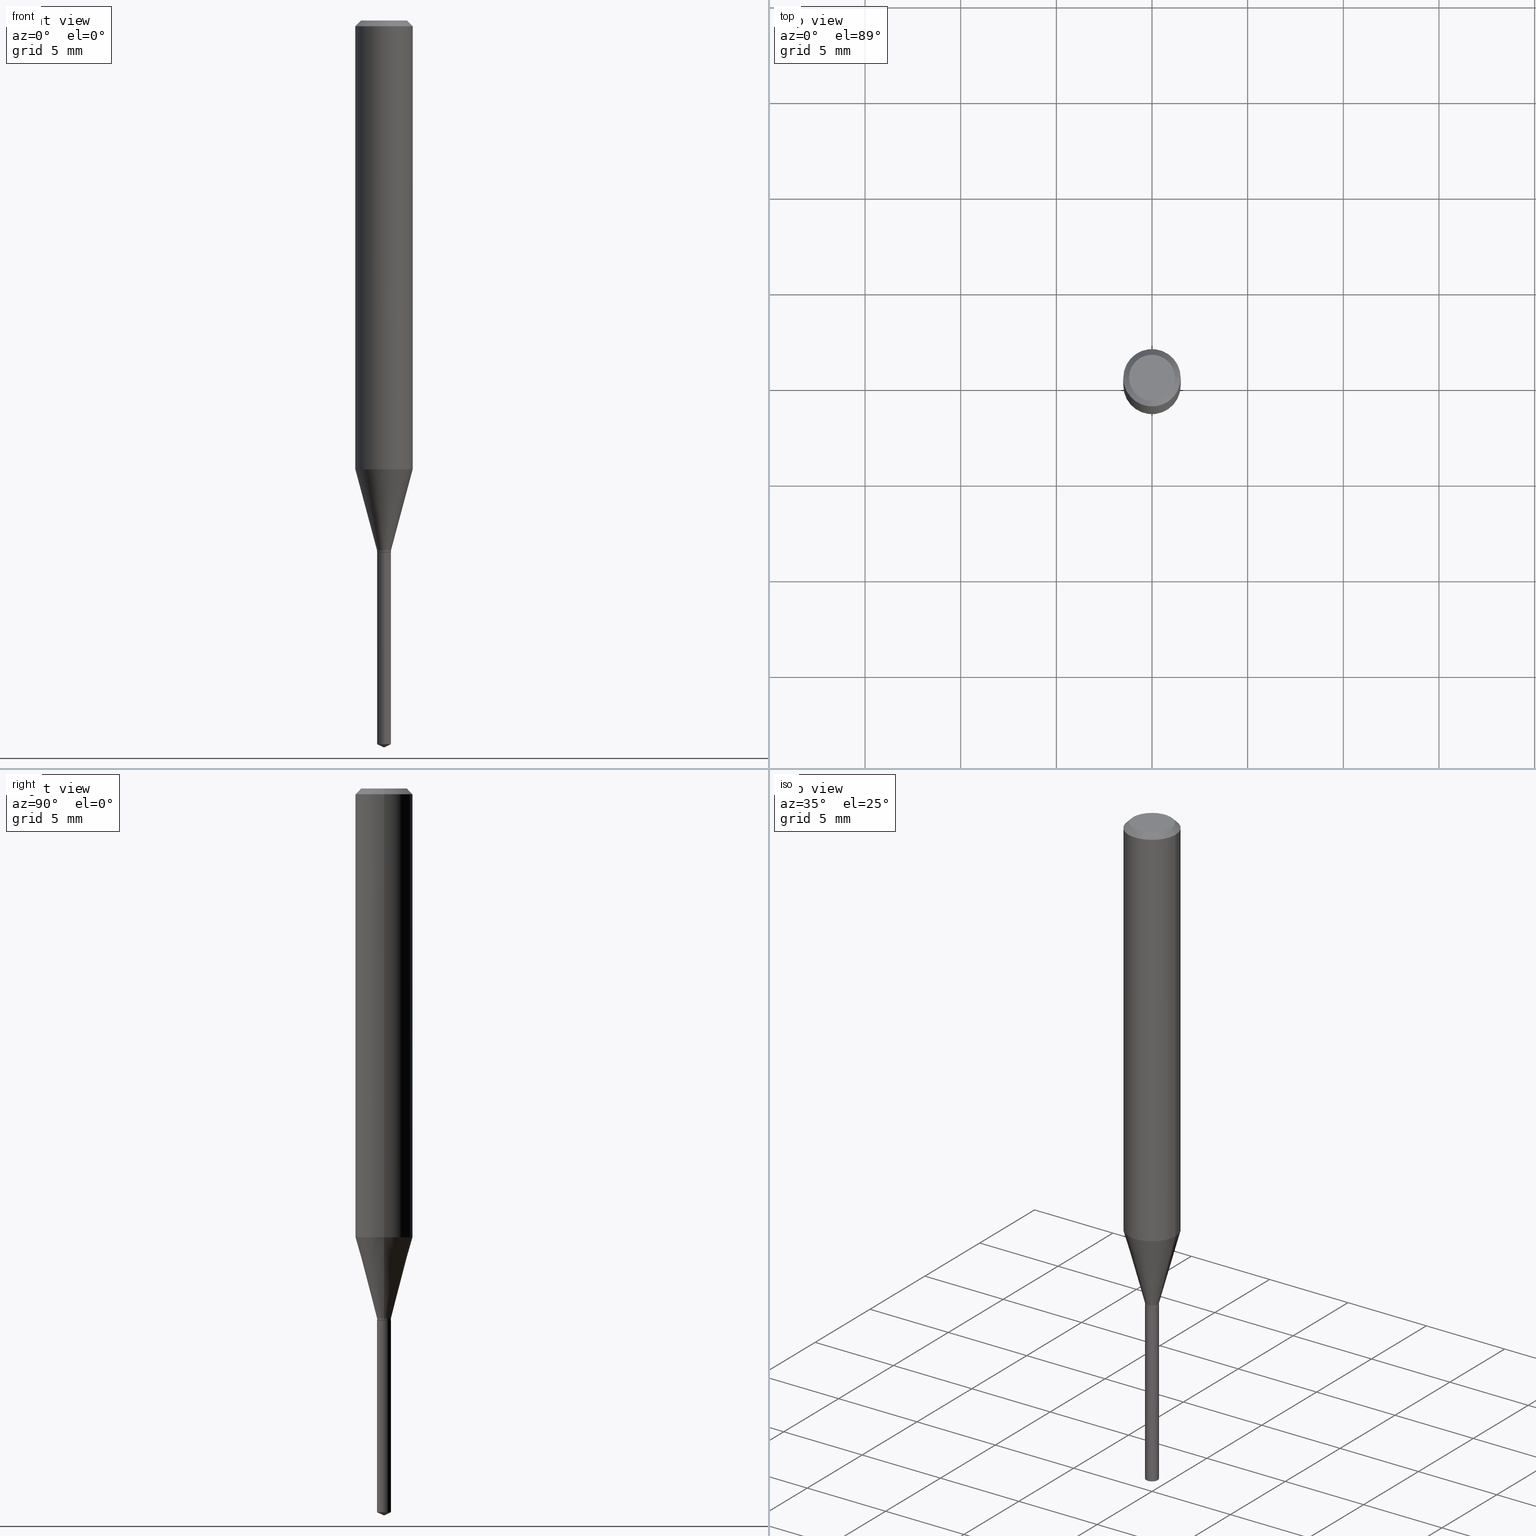
[diagram: canonical four-view strip — front | top / right | iso, engineering-drawing reading convention]
A machine part, canonical four-view strip (front | top / right | iso — engineering-drawing reading convention). The complete STEP part file that produces these views, byte-faithful:
ISO-10303-21;
HEADER;
FILE_DESCRIPTION (( 'STEP AP203' ),
    '1' );
FILE_NAME ('08297.STEP',
    '2024-04-24T14:10:12',
    ( '' ),
    ( '' ),
    'SwSTEP 2.0',
    'SolidWorks 2023',
    '' );
FILE_SCHEMA (( 'CONFIG_CONTROL_DESIGN' ));
ENDSEC;

DATA;
#1 = EDGE_CURVE ( 'NONE', #202, #313, #130, .T. ) ;
#2 = DIRECTION ( 'NONE',  ( 0.2588190451025213501, 1.565188264969621968E-15, 0.9659258262890682012 ) ) ;
#3 = VECTOR ( 'NONE', #466, 39.37007874015748143 ) ;
#4 = ADVANCED_FACE ( 'NONE', ( #254 ), #148, .T. ) ;
#5 = DIRECTION ( 'NONE',  ( 1.000000000000000000, -6.982962677686261977E-15, 0.000000000000000000 ) ) ;
#6 = EDGE_CURVE ( 'NONE', #313, #237, #451, .T. ) ;
#7 = PRODUCT ( '08297', '08297', '', ( #180 ) ) ;
#8 = AXIS2_PLACEMENT_3D ( 'NONE', #485, #381, #468 ) ;
#9 = LINE ( 'NONE', #157, #363 ) ;
#10 = DIRECTION ( 'NONE',  ( -1.000000000000000000, 6.982962677686266711E-15, 0.000000000000000000 ) ) ;
#11 = ORIENTED_EDGE ( 'NONE', *, *, #42, .F. ) ;
#12 = ADVANCED_FACE ( 'NONE', ( #369 ), #250, .T. ) ;
#13 = PERSON_AND_ORGANIZATION ( #452, #293 ) ;
#14 = ORIENTED_EDGE ( 'NONE', *, *, #173, .T. ) ;
#15 = AXIS2_PLACEMENT_3D ( 'NONE', #290, #376, #463 ) ;
#16 = AXIS2_PLACEMENT_3D ( 'NONE', #103, #365, #478 ) ;
#17 = APPROVAL_DATE_TIME ( #390, #291 ) ;
#18 = CARTESIAN_POINT ( 'NONE',  ( -1.002055144247615055E-16, -0.01435000000000520234, -1.489408485105475854 ) ) ;
#19 = ORIENTED_EDGE ( 'NONE', *, *, #120, .T. ) ;
#20 = PERSON_AND_ORGANIZATION ( #452, #293 ) ;
#21 = ORIENTED_EDGE ( 'NONE', *, *, #383, .F. ) ;
#22 = FACE_OUTER_BOUND ( 'NONE', #129, .T. ) ;
#23 = ORIENTED_EDGE ( 'NONE', *, *, #69, .F. ) ;
#24 = VERTEX_POINT ( 'NONE', #183 ) ;
#25 = EDGE_CURVE ( 'NONE', #391, #124, #413, .T. ) ;
#26 = LINE ( 'NONE', #57, #446 ) ;
#27 = ORIENTED_EDGE ( 'NONE', *, *, #415, .T. ) ;
#28 = CLOSED_SHELL ( 'NONE', ( #186, #84, #387, #222, #12, #227, #4, #342, #191, #268, #162, #448 ) ) ;
#29 = EDGE_LOOP ( 'NONE', ( #167, #349, #82, #277 ) ) ;
#30 = CARTESIAN_POINT ( 'NONE',  ( 0.01384999999999999946, -3.918140358449778015E-15, -1.094500000000000028 ) ) ;
#31 = DIRECTION ( 'NONE',  ( 1.000000000000000000, -6.982962677686268288E-15, 0.000000000000000000 ) ) ;
#32 = CARTESIAN_POINT ( 'NONE',  ( 3.641617199733199187E-29, -5.201222590288141765E-15, -1.489408485105475854 ) ) ;
#33 = DIRECTION ( 'NONE',  ( 1.000000000000000000, -6.982962677686261977E-15, 0.000000000000000000 ) ) ;
#34 = PRODUCT_DEFINITION ( 'UNKNOWN', '', #436, #89 ) ;
#35 = CARTESIAN_POINT ( 'NONE',  ( 2.676565608369631794E-29, -3.821426325363822773E-15, -1.094499999999999806 ) ) ;
#36 = CONICAL_SURFACE ( 'NONE', #155, 0.05904999999999999832, 0.7853981633974452814 ) ;
#37 = AXIS2_PLACEMENT_3D ( 'NONE', #62, #52, #444 ) ;
#38 = CARTESIAN_POINT ( 'NONE',  ( 1.019628825816011233E-16, 0.01434999999999617658, -1.094499999999999806 ) ) ;
#39 = FACE_OUTER_BOUND ( 'NONE', #288, .T. ) ;
#40 = AXIS2_PLACEMENT_3D ( 'NONE', #32, #482, #137 ) ;
#41 = DIRECTION ( 'NONE',  ( 1.000000000000000000, -6.982962677686265922E-15, 4.876176775795935793E-29 ) ) ;
#42 = EDGE_CURVE ( 'NONE', #313, #202, #272, .T. ) ;
#43 = LOCAL_TIME ( 10, 10, 12.00000000000000000, #185 ) ;
#44 = LOCAL_TIME ( 10, 10, 12.00000000000000000, #315 ) ;
#45 = CARTESIAN_POINT ( 'NONE',  ( 2.676565608369632355E-29, -3.821426325363822773E-15, -1.094500000000000028 ) ) ;
#46 = CC_DESIGN_PERSON_AND_ORGANIZATION_ASSIGNMENT ( #122, #286, ( #7 ) ) ;
#47 = DIRECTION ( 'NONE',  ( -2.445468806185136597E-29, 3.491481338843145583E-15, 1.000000000000000000 ) ) ;
#48 = APPROVAL_STATUS ( 'not_yet_approved' ) ;
#49 = VERTEX_POINT ( 'NONE', #425 ) ;
#50 = LOCAL_TIME ( 10, 10, 12.00000000000000000, #204 ) ;
#51 = PERSON_AND_ORGANIZATION_ROLE ( 'creator' ) ;
#52 = DIRECTION ( 'NONE',  ( -2.445468806185136597E-29, 3.491481338843145583E-15, 1.000000000000000000 ) ) ;
#53 = ORIENTED_EDGE ( 'NONE', *, *, #311, .F. ) ;
#54 = ORIENTED_EDGE ( 'NONE', *, *, #120, .F. ) ;
#55 = DIRECTION ( 'NONE',  ( 1.000000000000000000, -6.982962677686259611E-15, 0.000000000000000000 ) ) ;
#56 = ORIENTED_EDGE ( 'NONE', *, *, #297, .T. ) ;
#57 = CARTESIAN_POINT ( 'NONE',  ( 3.659900687734295349E-29, -5.221884583377288195E-15, -1.496099999999999985 ) ) ;
#58 = ORIENTED_EDGE ( 'NONE', *, *, #147, .T. ) ;
#59 = AXIS2_PLACEMENT_3D ( 'NONE', #179, #489, #410 ) ;
#60 = ORIENTED_EDGE ( 'NONE', *, *, #361, .T. ) ;
#61 = CARTESIAN_POINT ( 'NONE',  ( -0.01384999999999999946, -3.723016156461049481E-15, -1.094500000000000028 ) ) ;
#62 = CARTESIAN_POINT ( 'NONE',  ( 2.675342873966538993E-29, -3.819680584694400481E-15, -1.093999999999999861 ) ) ;
#63 = CARTESIAN_POINT ( 'NONE',  ( 2.666050092503035832E-29, -3.806412955606797054E-15, -1.090200000000000058 ) ) ;
#64 = LENGTH_MEASURE_WITH_UNIT ( LENGTH_MEASURE( 0.02539999999999999897 ), #104 );
#65 = VECTOR ( 'NONE', #287, 39.37007874015748143 ) ;
#66 = CARTESIAN_POINT ( 'NONE',  ( 0.05904999999999999832, -4.535783407291118600E-16, -0.01181000000000007218 ) ) ;
#67 = APPLICATION_CONTEXT ( 'configuration controlled 3d designs of mechanical parts and assemblies' ) ;
#68 = PLANE ( 'NONE',  #205 ) ;
#69 = EDGE_CURVE ( 'NONE', #470, #168, #404, .T. ) ;
#70 = CYLINDRICAL_SURFACE ( 'NONE', #113, 0.01434999999999999991 ) ;
#71 = CONICAL_SURFACE ( 'NONE', #15, 0.01384999999999999946, 0.7853981633972754173 ) ;
#72 = CONICAL_SURFACE ( 'NONE', #307, 84.42940631927551465, 1.134464013796321336 ) ;
#73 = DIRECTION ( 'NONE',  ( -2.445468806185136597E-29, 3.491481338843145583E-15, 1.000000000000000000 ) ) ;
#74 = CC_DESIGN_PERSON_AND_ORGANIZATION_ASSIGNMENT ( #139, #374, ( #34 ) ) ;
#75 = DIRECTION ( 'NONE',  ( -2.443734758208125307E-29, 3.493964594242107448E-15, 1.000000000000000000 ) ) ;
#76 = CARTESIAN_POINT ( 'NONE',  ( 2.676565608369631794E-29, -3.821426325363822773E-15, -1.094499999999999806 ) ) ;
#77 = CC_DESIGN_PERSON_AND_ORGANIZATION_ASSIGNMENT ( #207, #119, ( #436 ) ) ;
#78 = VECTOR ( 'NONE', #405, 39.37007874015748143 ) ;
#79 = DIRECTION ( 'NONE',  ( -0.2588190451025213501, 5.211531920934551042E-15, 0.9659258262890682012 ) ) ;
#80 = DIRECTION ( 'NONE',  ( -2.445468806185136597E-29, 3.491481338843145583E-15, 1.000000000000000000 ) ) ;
#81 = SECURITY_CLASSIFICATION_LEVEL ( 'unclassified' ) ;
#82 = ORIENTED_EDGE ( 'NONE', *, *, #109, .T. ) ;
#83 = ORIENTED_EDGE ( 'NONE', *, *, #415, .F. ) ;
#84 = ADVANCED_FACE ( 'NONE', ( #310 ), #164, .T. ) ;
#85 = DATE_AND_TIME ( #356, #50 ) ;
#86 = DIRECTION ( 'NONE',  ( -2.445468806185136597E-29, 3.491481338843145583E-15, 1.000000000000000000 ) ) ;
#87 = ORIENTED_EDGE ( 'NONE', *, *, #486, .F. ) ;
#88 = EDGE_CURVE ( 'NONE', #117, #24, #384, .T. ) ;
#89 = DESIGN_CONTEXT ( 'detailed design', #67, 'design' ) ;
#90 = FACE_OUTER_BOUND ( 'NONE', #216, .T. ) ;
#91 = VERTEX_POINT ( 'NONE', #18 ) ;
#92 = PERSON_AND_ORGANIZATION ( #452, #293 ) ;
#93 = VERTEX_POINT ( 'NONE', #166 ) ;
#94 = EDGE_CURVE ( 'NONE', #124, #313, #477, .T. ) ;
#95 = CARTESIAN_POINT ( 'NONE',  ( 8.265746106709734507E-48, -1.180129479067563789E-33, -3.380025165646692144E-19 ) ) ;
#96 = EDGE_LOOP ( 'NONE', ( #170, #281, #395, #11 ) ) ;
#97 = APPROVAL ( #278, 'UNSPECIFIED' ) ;
#98 = DIRECTION ( 'NONE',  ( 2.438088387897960049E-29, -3.491481338843145188E-15, -1.000000000000000000 ) ) ;
#99 = CARTESIAN_POINT ( 'NONE',  ( -0.05905000000000005383, 4.195754854663395423E-16, -2.904631170795524694E-30 ) ) ;
#100 = APPROVAL_STATUS ( 'not_yet_approved' ) ;
#101 = DIRECTION ( 'NONE',  ( -2.445468806185136597E-29, 3.491481338843145583E-15, 1.000000000000000000 ) ) ;
#102 = VECTOR ( 'NONE', #2, 39.37007874015747433 ) ;
#103 = CARTESIAN_POINT ( 'NONE',  ( -9.255206036344757913E-28, 1.323330586842227040E-13, 37.87397874015748300 ) ) ;
#104 =( LENGTH_UNIT ( ) NAMED_UNIT ( * ) SI_UNIT ( $, .METRE. ) );
#105 = ORIENTED_EDGE ( 'NONE', *, *, #109, .F. ) ;
#106 = CARTESIAN_POINT ( 'NONE',  ( 0.01434999999999999991, -3.906618470031595303E-15, -1.090200000000000058 ) ) ;
#107 = EDGE_CURVE ( 'NONE', #172, #237, #233, .T. ) ;
#108 = AXIS2_PLACEMENT_3D ( 'NONE', #142, #335, #339 ) ;
#109 = EDGE_CURVE ( 'NONE', #202, #172, #111, .T. ) ;
#110 = CARTESIAN_POINT ( 'NONE',  ( 3.656071571755175449E-29, -5.227320429445616787E-15, -1.496099999999999985 ) ) ;
#111 = LINE ( 'NONE', #460, #239 ) ;
#112 = CARTESIAN_POINT ( 'NONE',  ( -0.01434999999999999991, -3.711083887569024576E-15, -1.090200000000000058 ) ) ;
#113 = AXIS2_PLACEMENT_3D ( 'NONE', #151, #461, #458 ) ;
#114 = DIRECTION ( 'NONE',  ( 6.439704144417045341E-15, 0.9063077870366544886, 0.4226182617406898934 ) ) ;
#115 = DIRECTION ( 'NONE',  ( -2.445468806185136597E-29, 3.491481338843145583E-15, 1.000000000000000000 ) ) ;
#116 = AXIS2_PLACEMENT_3D ( 'NONE', #347, #385, #159 ) ;
#117 = VERTEX_POINT ( 'NONE', #462 ) ;
#118 = AXIS2_PLACEMENT_3D ( 'NONE', #95, #182, #283 ) ;
#119 = PERSON_AND_ORGANIZATION_ROLE ( 'design_supplier' ) ;
#120 = EDGE_CURVE ( 'NONE', #91, #232, #265, .T. ) ;
#121 = ORIENTED_EDGE ( 'NONE', *, *, #256, .F. ) ;
#122 = PERSON_AND_ORGANIZATION ( #452, #293 ) ;
#123 = APPROVAL_ROLE ( '' ) ;
#124 = VERTEX_POINT ( 'NONE', #112 ) ;
#125 = CARTESIAN_POINT ( 'NONE',  ( -0.01434999999999999991, -3.704450073025222863E-15, -1.090200000000000058 ) ) ;
#126 = CARTESIAN_POINT ( 'NONE',  ( 2.676565608369632355E-29, -3.821426325363822773E-15, -1.094500000000000028 ) ) ;
#127 = EDGE_LOOP ( 'NONE', ( #435, #362, #432, #370 ) ) ;
#128 = CARTESIAN_POINT ( 'NONE',  ( -9.255206036344757913E-28, 1.323330586842227040E-13, 37.87397874015748300 ) ) ;
#129 = EDGE_LOOP ( 'NONE', ( #198, #403, #121 ) ) ;
#130 = CIRCLE ( 'NONE', #282, 0.05905000000000010241 ) ;
#131 = UNCERTAINTY_MEASURE_WITH_UNIT (LENGTH_MEASURE( 1.000000000000000082E-05 ), #443, 'distance_accuracy_value', 'NONE');
#132 = AXIS2_PLACEMENT_3D ( 'NONE', #357, #212, #360 ) ;
#133 = PLANE ( 'NONE',  #242 ) ;
#134 = EDGE_LOOP ( 'NONE', ( #483, #355 ) ) ;
#135 = EDGE_CURVE ( 'NONE', #232, #359, #260, .T. ) ;
#136 = ORIENTED_EDGE ( 'NONE', *, *, #302, .T. ) ;
#137 = DIRECTION ( 'NONE',  ( -6.982962677686265922E-15, -1.000000000000000000, 0.000000000000000000 ) ) ;
#138 = DIRECTION ( 'NONE',  ( 1.000000000000000000, -6.982962677686266711E-15, 4.876176775795935793E-29 ) ) ;
#139 = PERSON_AND_ORGANIZATION ( #452, #293 ) ;
#140 = ORIENTED_EDGE ( 'NONE', *, *, #454, .T. ) ;
#141 = EDGE_CURVE ( 'NONE', #237, #172, #305, .T. ) ;
#142 = CARTESIAN_POINT ( 'NONE',  ( 2.666050092503035832E-29, -3.806412955606797054E-15, -1.090200000000000058 ) ) ;
#143 = ADVANCED_FACE ( 'NONE', ( #269 ), #424, .F. ) ;
#144 = CARTESIAN_POINT ( 'NONE',  ( 3.641617199733199187E-29, -5.201222590288141765E-15, -1.489408485105475854 ) ) ;
#145 =( NAMED_UNIT ( * ) PLANE_ANGLE_UNIT ( ) SI_UNIT ( $, .RADIAN. ) );
#146 = LINE ( 'NONE', #38, #392 ) ;
#147 = EDGE_CURVE ( 'NONE', #294, #124, #9, .T. ) ;
#148 = CONICAL_SURFACE ( 'NONE', #455, 0.01434999999999999991, 0.2617993877991500740 ) ;
#149 = AXIS2_PLACEMENT_3D ( 'NONE', #126, #86, #55 ) ;
#150 = CARTESIAN_POINT ( 'NONE',  ( -4.861019835587709197E-29, -1.461567769383146162E-14, -1.094500000000000028 ) ) ;
#151 = CARTESIAN_POINT ( 'NONE',  ( 2.676565608369631794E-29, -3.821426325363822773E-15, -1.094499999999999806 ) ) ;
#152 = FACE_OUTER_BOUND ( 'NONE', #127, .T. ) ;
#153 = ADVANCED_BREP_SHAPE_REPRESENTATION ( '08297', ( #407, #246, #338 ), #199 ) ;
#154 = DIRECTION ( 'NONE',  ( -2.445468806185136597E-29, 3.491481338843145583E-15, 1.000000000000000000 ) ) ;
#155 = AXIS2_PLACEMENT_3D ( 'NONE', #228, #192, #340 ) ;
#156 = CONICAL_SURFACE ( 'NONE', #149, 0.01384999999999999946, 0.7853981633972754173 ) ;
#157 = CARTESIAN_POINT ( 'NONE',  ( -0.01434999999999999991, 1.019628825815743760E-16, -7.058671854515789861E-31 ) ) ;
#158 = ORIENTED_EDGE ( 'NONE', *, *, #351, .F. ) ;
#159 = DIRECTION ( 'NONE',  ( 1.000000000000000000, -6.982962677686266711E-15, 4.876185090822587894E-29 ) ) ;
#160 = DIRECTION ( 'NONE',  ( 1.000000000000000000, -6.982962677686266711E-15, 0.000000000000000000 ) ) ;
#161 = ORIENTED_EDGE ( 'NONE', *, *, #454, .F. ) ;
#162 = ADVANCED_FACE ( 'NONE', ( #469 ), #68, .F. ) ;
#163 = PERSON_AND_ORGANIZATION_ROLE ( 'classification_officer' ) ;
#164 = CONICAL_SURFACE ( 'NONE', #188, 0.05904999999999999832, 0.7853981633974452814 ) ;
#165 = ORIENTED_EDGE ( 'NONE', *, *, #190, .F. ) ;
#166 = CARTESIAN_POINT ( 'NONE',  ( 0.01434999999999999991, -3.919886099119198730E-15, -1.093999999999999861 ) ) ;
#167 = ORIENTED_EDGE ( 'NONE', *, *, #6, .F. ) ;
#168 = VERTEX_POINT ( 'NONE', #303 ) ;
#169 = CARTESIAN_POINT ( 'NONE',  ( -0.01434999999999999991, -3.711083887569024576E-15, -1.093999999999999861 ) ) ;
#170 = ORIENTED_EDGE ( 'NONE', *, *, #94, .F. ) ;
#171 = CARTESIAN_POINT ( 'NONE',  ( 4.132873053354867254E-48, -5.900647395337818946E-34, -1.690012582823346072E-19 ) ) ;
#172 = VERTEX_POINT ( 'NONE', #66 ) ;
#173 = EDGE_CURVE ( 'NONE', #49, #91, #301, .T. ) ;
#174 = AXIS2_PLACEMENT_3D ( 'NONE', #45, #47, #318 ) ;
#175 = DIRECTION ( 'NONE',  ( 1.000000000000000000, 0.000000000000000000, 0.000000000000000000 ) ) ;
#176 = VECTOR ( 'NONE', #218, 39.37007874015748143 ) ;
#177 = SHAPE_DEFINITION_REPRESENTATION ( #409, #153 ) ;
#178 = CARTESIAN_POINT ( 'NONE',  ( 1.019628825816108239E-16, 0.01434999999999617484, -1.094499999999999806 ) ) ;
#179 = CARTESIAN_POINT ( 'NONE',  ( 0.000000000000000000, 0.000000000000000000, 0.000000000000000000 ) ) ;
#180 = MECHANICAL_CONTEXT ( 'NONE', #440, 'mechanical' ) ;
#181 = DIRECTION ( 'NONE',  ( 1.000000000000000000, -6.982962677686261977E-15, 0.000000000000000000 ) ) ;
#182 = DIRECTION ( 'NONE',  ( -2.445468806185136597E-29, 3.491481338843145583E-15, 1.000000000000000000 ) ) ;
#183 = CARTESIAN_POINT ( 'NONE',  ( -0.01384999999999999946, -3.720366929286937491E-15, -1.094500000000000028 ) ) ;
#184 = COORDINATED_UNIVERSAL_TIME_OFFSET ( 5, 0, .BEHIND. ) ;
#185 = COORDINATED_UNIVERSAL_TIME_OFFSET ( 5, 0, .BEHIND. ) ;
#186 = ADVANCED_FACE ( 'NONE', ( #229 ), #71, .T. ) ;
#187 = DIRECTION ( 'NONE',  ( 1.000000000000000000, -6.982962677686266711E-15, 4.876176775795935793E-29 ) ) ;
#188 = AXIS2_PLACEMENT_3D ( 'NONE', #271, #429, #10 ) ;
#189 = VECTOR ( 'NONE', #484, 39.37007874015748143 ) ;
#190 = EDGE_CURVE ( 'NONE', #93, #294, #464, .T. ) ;
#191 = ADVANCED_FACE ( 'NONE', ( #39 ), #36, .T. ) ;
#192 = DIRECTION ( 'NONE',  ( 2.445468806185136597E-29, -3.491481338843145583E-15, -1.000000000000000000 ) ) ;
#193 = EDGE_CURVE ( 'NONE', #326, #359, #146, .T. ) ;
#194 = CIRCLE ( 'NONE', #234, 0.01434999999999999991 ) ;
#195 = APPROVAL_DATE_TIME ( #422, #348 ) ;
#196 = DIRECTION ( 'NONE',  ( -2.445468806185136877E-29, 3.491481338843145188E-15, 1.000000000000000000 ) ) ;
#197 = CARTESIAN_POINT ( 'NONE',  ( 2.666050092503035832E-29, -3.806412955606797054E-15, -1.090200000000000058 ) ) ;
#198 = ORIENTED_EDGE ( 'NONE', *, *, #173, .F. ) ;
#199 =( GEOMETRIC_REPRESENTATION_CONTEXT ( 3 ) GLOBAL_UNCERTAINTY_ASSIGNED_CONTEXT ( ( #131 ) ) GLOBAL_UNIT_ASSIGNED_CONTEXT ( ( #443, #145, #328 ) ) REPRESENTATION_CONTEXT ( 'NONE', 'WORKASPACE' ) );
#200 = ADVANCED_FACE ( 'NONE', ( #298 ), #70, .T. ) ;
#201 = CARTESIAN_POINT ( 'NONE',  ( 2.888098660104664204E-31, -4.123439461173780263E-17, -0.01181000000000007218 ) ) ;
#202 = VERTEX_POINT ( 'NONE', #264 ) ;
#203 = EDGE_CURVE ( 'NONE', #24, #117, #226, .T. ) ;
#204 = COORDINATED_UNIVERSAL_TIME_OFFSET ( 5, 0, .BEHIND. ) ;
#205 = AXIS2_PLACEMENT_3D ( 'NONE', #150, #377, #41 ) ;
#206 = CIRCLE ( 'NONE', #132, 0.01434999999999999991 ) ;
#207 = PERSON_AND_ORGANIZATION ( #452, #293 ) ;
#208 = CARTESIAN_POINT ( 'NONE',  ( 0.01434999999999999991, -3.906618470031595303E-15, -1.090200000000000058 ) ) ;
#209 = EDGE_LOOP ( 'NONE', ( #438, #284, #165, #211 ) ) ;
#210 = DIRECTION ( 'NONE',  ( 0.000000000000000000, 0.000000000000000000, 1.000000000000000000 ) ) ;
#211 = ORIENTED_EDGE ( 'NONE', *, *, #361, .F. ) ;
#212 = DIRECTION ( 'NONE',  ( -2.443734758208125307E-29, 3.493964594242107448E-15, 1.000000000000000000 ) ) ;
#213 = ORIENTED_EDGE ( 'NONE', *, *, #107, .T. ) ;
#214 = CARTESIAN_POINT ( 'NONE',  ( -1.002055144247711567E-16, -0.01435000000000382150, -1.094499999999999806 ) ) ;
#215 = CYLINDRICAL_SURFACE ( 'NONE', #346, 0.05905000000000005383 ) ;
#216 = EDGE_LOOP ( 'NONE', ( #21, #235, #60, #53 ) ) ;
#217 = AXIS2_PLACEMENT_3D ( 'NONE', #76, #382, #345 ) ;
#218 = DIRECTION ( 'NONE',  ( 0.7071067811865453523, -7.319954787623248157E-15, -0.7071067811865496822 ) ) ;
#219 = EDGE_LOOP ( 'NONE', ( #276, #140 ) ) ;
#220 = FACE_OUTER_BOUND ( 'NONE', #350, .T. ) ;
#221 = DIRECTION ( 'NONE',  ( -2.445468806185136877E-29, 3.491481338843145188E-15, 1.000000000000000000 ) ) ;
#222 = ADVANCED_FACE ( 'NONE', ( #152 ), #251, .T. ) ;
#223 = ORIENTED_EDGE ( 'NONE', *, *, #141, .T. ) ;
#224 = DIRECTION ( 'NONE',  ( -6.982962677686265922E-15, -1.000000000000000000, 0.000000000000000000 ) ) ;
#225 = DIRECTION ( 'NONE',  ( -2.445468806185136597E-29, 3.491481338843145583E-15, 1.000000000000000000 ) ) ;
#226 = CIRCLE ( 'NONE', #316, 0.01384999999999999946 ) ;
#227 = ADVANCED_FACE ( 'NONE', ( #304 ), #267, .T. ) ;
#228 = CARTESIAN_POINT ( 'NONE',  ( 2.888098660104664204E-31, -4.123439461173780263E-17, -0.01181000000000007218 ) ) ;
#229 = FACE_OUTER_BOUND ( 'NONE', #209, .T. ) ;
#230 = DIRECTION ( 'NONE',  ( 1.000000000000000000, -6.982962677686259611E-15, 0.000000000000000000 ) ) ;
#231 = CARTESIAN_POINT ( 'NONE',  ( -1.002055144247711567E-16, -0.01435000000000382150, -1.094499999999999806 ) ) ;
#232 = VERTEX_POINT ( 'NONE', #214 ) ;
#233 = CIRCLE ( 'NONE', #299, 0.05904999999999999832 ) ;
#234 = AXIS2_PLACEMENT_3D ( 'NONE', #144, #453, #402 ) ;
#235 = ORIENTED_EDGE ( 'NONE', *, *, #203, .T. ) ;
#236 = EDGE_LOOP ( 'NONE', ( #397, #270, #27, #441 ) ) ;
#237 = VERTEX_POINT ( 'NONE', #257 ) ;
#238 = DIMENSIONAL_EXPONENTS ( 1.000000000000000000, 0.000000000000000000, 0.000000000000000000, 0.000000000000000000, 0.000000000000000000, 0.000000000000000000, 0.000000000000000000 ) ;
#239 = VECTOR ( 'NONE', #196, 39.37007874015748143 ) ;
#240 = CARTESIAN_POINT ( 'NONE',  ( -0.05904999999999999832, 3.711095515056362547E-16, -0.01181000000000007218 ) ) ;
#241 = EDGE_LOOP ( 'NONE', ( #406, #56, #19, #161 ) ) ;
#242 = AXIS2_PLACEMENT_3D ( 'NONE', #171, #98, #329 ) ;
#243 = EDGE_LOOP ( 'NONE', ( #401, #248, #321, #54 ) ) ;
#244 = LINE ( 'NONE', #240, #65 ) ;
#245 = ORIENTED_EDGE ( 'NONE', *, *, #297, .F. ) ;
#246 = MANIFOLD_SOLID_BREP ( 'Body-Move/Copy2[2]', #28 ) ;
#247 = FACE_OUTER_BOUND ( 'NONE', #262, .T. ) ;
#248 = ORIENTED_EDGE ( 'NONE', *, *, #193, .T. ) ;
#249 = CYLINDRICAL_SURFACE ( 'NONE', #428, 0.05905000000000005383 ) ;
#250 = CYLINDRICAL_SURFACE ( 'NONE', #59, 0.01434999999999999991 ) ;
#251 = CONICAL_SURFACE ( 'NONE', #393, 0.01434999999999999991, 0.2617993877991500740 ) ;
#252 = APPROVAL_ROLE ( '' ) ;
#253 = DIRECTION ( 'NONE',  ( -2.445468806185136597E-29, 3.491481338843145583E-15, 1.000000000000000000 ) ) ;
#254 = FACE_OUTER_BOUND ( 'NONE', #96, .T. ) ;
#255 = EDGE_CURVE ( 'NONE', #391, #202, #296, .T. ) ;
#256 = EDGE_CURVE ( 'NONE', #91, #326, #194, .T. ) ;
#257 = CARTESIAN_POINT ( 'NONE',  ( -0.05904999999999999832, -1.213019068125036295E-15, -0.01181000000000007218 ) ) ;
#258 = APPROVAL_ROLE ( '' ) ;
#259 = VECTOR ( 'NONE', #343, 39.37007874015748854 ) ;
#260 = CIRCLE ( 'NONE', #427, 0.01434999999999999991 ) ;
#261 = SECURITY_CLASSIFICATION ( '', '', #81 ) ;
#262 = EDGE_LOOP ( 'NONE', ( #274, #14, #245 ) ) ;
#263 = CARTESIAN_POINT ( 'NONE',  ( 2.675342873966538993E-29, -3.819680584694400481E-15, -1.093999999999999861 ) ) ;
#264 = CARTESIAN_POINT ( 'NONE',  ( 0.05905000000000011628, -3.636298658688389161E-15, -0.9233773289016712349 ) ) ;
#265 = LINE ( 'NONE', #231, #3 ) ;
#266 = CC_DESIGN_APPROVAL ( #97, ( #34 ) ) ;
#267 = CYLINDRICAL_SURFACE ( 'NONE', #8, 0.01434999999999999991 ) ;
#268 = ADVANCED_FACE ( 'NONE', ( #289 ), #133, .F. ) ;
#269 = FACE_OUTER_BOUND ( 'NONE', #219, .T. ) ;
#270 = ORIENTED_EDGE ( 'NONE', *, *, #311, .T. ) ;
#271 = CARTESIAN_POINT ( 'NONE',  ( 2.888098660104664204E-31, -4.123439461173780263E-17, -0.01181000000000007218 ) ) ;
#272 = CIRCLE ( 'NONE', #341, 0.05905000000000010241 ) ;
#273 = CONICAL_SURFACE ( 'NONE', #16, 84.42940631927551465, 1.134464013796321336 ) ;
#274 = ORIENTED_EDGE ( 'NONE', *, *, #467, .F. ) ;
#275 = DATE_AND_TIME ( #473, #44 ) ;
#276 = ORIENTED_EDGE ( 'NONE', *, *, #135, .T. ) ;
#277 = ORIENTED_EDGE ( 'NONE', *, *, #141, .F. ) ;
#278 = APPROVAL_STATUS ( 'not_yet_approved' ) ;
#279 = CALENDAR_DATE ( 2024, 24, 4 ) ;
#280 = LINE ( 'NONE', #61, #189 ) ;
#281 = ORIENTED_EDGE ( 'NONE', *, *, #474, .T. ) ;
#282 = AXIS2_PLACEMENT_3D ( 'NONE', #430, #80, #400 ) ;
#283 = DIRECTION ( 'NONE',  ( 1.000000000000000000, -6.982962677686266711E-15, 4.876185090822587894E-29 ) ) ;
#284 = ORIENTED_EDGE ( 'NONE', *, *, #383, .T. ) ;
#285 = APPROVAL_PERSON_ORGANIZATION ( #13, #291, #123 ) ;
#286 = PERSON_AND_ORGANIZATION_ROLE ( 'design_owner' ) ;
#287 = DIRECTION ( 'NONE',  ( -0.7071067811865453523, 2.468850131082234184E-15, -0.7071067811865496822 ) ) ;
#288 = EDGE_LOOP ( 'NONE', ( #87, #23, #136, #223 ) ) ;
#289 = FACE_OUTER_BOUND ( 'NONE', #134, .T. ) ;
#290 = CARTESIAN_POINT ( 'NONE',  ( 2.676565608369632355E-29, -3.821426325363822773E-15, -1.094500000000000028 ) ) ;
#291 = APPROVAL ( #48, 'UNSPECIFIED' ) ;
#292 = LINE ( 'NONE', #437, #364 ) ;
#293 = ORGANIZATION ( 'UNSPECIFIED', 'UNSPECIFIED', '' ) ;
#294 = VERTEX_POINT ( 'NONE', #169 ) ;
#295 = DIRECTION ( 'NONE',  ( 1.000000000000000000, -6.982962677686261977E-15, 0.000000000000000000 ) ) ;
#296 = LINE ( 'NONE', #106, #102 ) ;
#297 = EDGE_CURVE ( 'NONE', #326, #91, #472, .T. ) ;
#298 = FACE_OUTER_BOUND ( 'NONE', #241, .T. ) ;
#299 = AXIS2_PLACEMENT_3D ( 'NONE', #201, #154, #160 ) ;
#300 = CIRCLE ( 'NONE', #37, 0.01434999999999999991 ) ;
#301 = LINE ( 'NONE', #110, #259 ) ;
#302 = EDGE_CURVE ( 'NONE', #470, #237, #244, .T. ) ;
#303 = CARTESIAN_POINT ( 'NONE',  ( 0.04724000000000000421, -3.852183633974369345E-16, -3.380025165621689721E-19 ) ) ;
#304 = FACE_OUTER_BOUND ( 'NONE', #236, .T. ) ;
#305 = CIRCLE ( 'NONE', #337, 0.05904999999999999832 ) ;
#306 = CARTESIAN_POINT ( 'NONE',  ( 2.888098660104664204E-31, -4.123439461173780263E-17, -0.01181000000000007218 ) ) ;
#307 = AXIS2_PLACEMENT_3D ( 'NONE', #128, #399, #320 ) ;
#308 = DIRECTION ( 'NONE',  ( -2.445468806185136877E-29, 3.491481338843145188E-15, 1.000000000000000000 ) ) ;
#309 = EDGE_LOOP ( 'NONE', ( #332, #450 ) ) ;
#310 = FACE_OUTER_BOUND ( 'NONE', #367, .T. ) ;
#311 = EDGE_CURVE ( 'NONE', #294, #93, #300, .T. ) ;
#312 = DIRECTION ( 'NONE',  ( 1.000000000000000000, -6.982962677686266711E-15, 0.000000000000000000 ) ) ;
#313 = VERTEX_POINT ( 'NONE', #333 ) ;
#314 = ORIENTED_EDGE ( 'NONE', *, *, #25, .F. ) ;
#315 = COORDINATED_UNIVERSAL_TIME_OFFSET ( 5, 0, .BEHIND. ) ;
#316 = AXIS2_PLACEMENT_3D ( 'NONE', #419, #73, #230 ) ;
#317 = ADVANCED_FACE ( 'NONE', ( #22 ), #72, .T. ) ;
#318 = DIRECTION ( 'NONE',  ( 1.000000000000000000, -6.982962677686259611E-15, 0.000000000000000000 ) ) ;
#319 = ORIENTED_EDGE ( 'NONE', *, *, #190, .T. ) ;
#320 = DIRECTION ( 'NONE',  ( -6.982962677686267499E-15, -1.000000000000000000, 3.520397390770404961E-15 ) ) ;
#321 = ORIENTED_EDGE ( 'NONE', *, *, #135, .F. ) ;
#322 = APPLICATION_PROTOCOL_DEFINITION ( 'international standard', 'config_control_design', 1994, #440 ) ;
#323 = CLOSED_SHELL ( 'NONE', ( #398, #317, #426, #200, #143 ) ) ;
#324 = CC_DESIGN_APPROVAL ( #348, ( #261 ) ) ;
#325 = LINE ( 'NONE', #30, #78 ) ;
#326 = VERTEX_POINT ( 'NONE', #408 ) ;
#327 = APPROVAL_PERSON_ORGANIZATION ( #445, #348, #252 ) ;
#328 =( NAMED_UNIT ( * ) SI_UNIT ( $, .STERADIAN. ) SOLID_ANGLE_UNIT ( ) );
#329 = DIRECTION ( 'NONE',  ( -1.000000000000000000, 6.982962677686265922E-15, -4.876176775795935793E-29 ) ) ;
#330 = CARTESIAN_POINT ( 'NONE',  ( 2.258090454167590086E-29, -3.223954712571014636E-15, -0.9233773289016712349 ) ) ;
#331 = PRODUCT_RELATED_PRODUCT_CATEGORY ( 'detail', '', ( #7 ) ) ;
#332 = ORIENTED_EDGE ( 'NONE', *, *, #88, .F. ) ;
#333 = CARTESIAN_POINT ( 'NONE',  ( -0.05905000000000011628, -2.804379227104674354E-15, -0.9233773289016712349 ) ) ;
#334 = CARTESIAN_POINT ( 'NONE',  ( 2.666050092503035832E-29, -3.806412955606797054E-15, -1.090200000000000058 ) ) ;
#335 = DIRECTION ( 'NONE',  ( -2.445468806185136597E-29, 3.491481338843145583E-15, 1.000000000000000000 ) ) ;
#336 = DIRECTION ( 'NONE',  ( -2.445468806185136597E-29, 3.491481338843145583E-15, 1.000000000000000000 ) ) ;
#337 = AXIS2_PLACEMENT_3D ( 'NONE', #306, #115, #312 ) ;
#338 = AXIS2_PLACEMENT_3D ( 'NONE', #476, #210, #175 ) ;
#339 = DIRECTION ( 'NONE',  ( 1.000000000000000000, -6.982962677686261977E-15, 0.000000000000000000 ) ) ;
#340 = DIRECTION ( 'NONE',  ( -1.000000000000000000, 6.982962677686266711E-15, 0.000000000000000000 ) ) ;
#341 = AXIS2_PLACEMENT_3D ( 'NONE', #330, #366, #31 ) ;
#342 = ADVANCED_FACE ( 'NONE', ( #442 ), #249, .T. ) ;
#343 = DIRECTION ( 'NONE',  ( -6.328713451373388311E-15, -0.9063077870366513800, 0.4226182617406960551 ) ) ;
#344 = DIRECTION ( 'NONE',  ( -2.443734758208125307E-29, 3.493964594242107842E-15, 1.000000000000000000 ) ) ;
#345 = DIRECTION ( 'NONE',  ( 6.982962677686265922E-15, 1.000000000000000000, -3.493964594242107842E-15 ) ) ;
#346 = AXIS2_PLACEMENT_3D ( 'NONE', #487, #253, #138 ) ;
#347 = CARTESIAN_POINT ( 'NONE',  ( 8.265746106709734507E-48, -1.180129479067563789E-33, -3.380025165646692144E-19 ) ) ;
#348 = APPROVAL ( #100, 'UNSPECIFIED' ) ;
#349 = ORIENTED_EDGE ( 'NONE', *, *, #42, .T. ) ;
#350 = EDGE_LOOP ( 'NONE', ( #386, #479, #389, #105 ) ) ;
#351 = EDGE_CURVE ( 'NONE', #168, #470, #465, .T. ) ;
#352 = COORDINATED_UNIVERSAL_TIME_OFFSET ( 5, 0, .BEHIND. ) ;
#353 = AXIS2_PLACEMENT_3D ( 'NONE', #334, #225, #295 ) ;
#354 = CIRCLE ( 'NONE', #108, 0.01434999999999999991 ) ;
#355 = ORIENTED_EDGE ( 'NONE', *, *, #351, .T. ) ;
#356 = CALENDAR_DATE ( 2024, 24, 4 ) ;
#357 = CARTESIAN_POINT ( 'NONE',  ( 2.676565608369631794E-29, -3.821426325363822773E-15, -1.094499999999999806 ) ) ;
#358 = EDGE_LOOP ( 'NONE', ( #319, #58, #314, #83 ) ) ;
#359 = VERTEX_POINT ( 'NONE', #178 ) ;
#360 = DIRECTION ( 'NONE',  ( -6.982962677686265922E-15, -1.000000000000000000, 0.000000000000000000 ) ) ;
#361 = EDGE_CURVE ( 'NONE', #117, #93, #325, .T. ) ;
#362 = ORIENTED_EDGE ( 'NONE', *, *, #94, .T. ) ;
#363 = VECTOR ( 'NONE', #308, 39.37007874015748143 ) ;
#364 = VECTOR ( 'NONE', #447, 39.37007874015748143 ) ;
#365 = DIRECTION ( 'NONE',  ( -2.443734758208125307E-29, 3.493964594242107448E-15, 1.000000000000000000 ) ) ;
#366 = DIRECTION ( 'NONE',  ( -2.445468806185136597E-29, 3.491481338843145583E-15, 1.000000000000000000 ) ) ;
#367 = EDGE_LOOP ( 'NONE', ( #158, #416, #213, #475 ) ) ;
#368 = DIRECTION ( 'NONE',  ( -2.443734758208125307E-29, 3.493964594242107448E-15, 1.000000000000000000 ) ) ;
#369 = FACE_OUTER_BOUND ( 'NONE', #358, .T. ) ;
#370 = ORIENTED_EDGE ( 'NONE', *, *, #255, .F. ) ;
#371 = FACE_OUTER_BOUND ( 'NONE', #243, .T. ) ;
#372 = VECTOR ( 'NONE', #79, 39.37007874015747433 ) ;
#373 = AXIS2_PLACEMENT_3D ( 'NONE', #35, #368, #224 ) ;
#374 = PERSON_AND_ORGANIZATION_ROLE ( 'creator' ) ;
#375 = CALENDAR_DATE ( 2024, 24, 4 ) ;
#376 = DIRECTION ( 'NONE',  ( -2.445468806185136597E-29, 3.491481338843145583E-15, 1.000000000000000000 ) ) ;
#377 = DIRECTION ( 'NONE',  ( -2.438088387897960049E-29, 3.491481338843145188E-15, 1.000000000000000000 ) ) ;
#378 = CC_DESIGN_DATE_AND_TIME_ASSIGNMENT ( #85, #388, ( #34 ) ) ;
#379 = CALENDAR_DATE ( 2024, 24, 4 ) ;
#380 = DIRECTION ( 'NONE',  ( -6.982962677686265922E-15, -1.000000000000000000, 0.000000000000000000 ) ) ;
#381 = DIRECTION ( 'NONE',  ( -2.445468806185136597E-29, 3.491481338843145583E-15, 1.000000000000000000 ) ) ;
#382 = DIRECTION ( 'NONE',  ( 2.443734758208124747E-29, -3.493964594242107842E-15, -1.000000000000000000 ) ) ;
#383 = EDGE_CURVE ( 'NONE', #24, #294, #280, .T. ) ;
#384 = CIRCLE ( 'NONE', #174, 0.01384999999999999946 ) ;
#385 = DIRECTION ( 'NONE',  ( -2.445468806185136597E-29, 3.491481338843145583E-15, 1.000000000000000000 ) ) ;
#386 = ORIENTED_EDGE ( 'NONE', *, *, #1, .T. ) ;
#387 = ADVANCED_FACE ( 'NONE', ( #220 ), #215, .T. ) ;
#388 = DATE_TIME_ROLE ( 'creation_date' ) ;
#389 = ORIENTED_EDGE ( 'NONE', *, *, #107, .F. ) ;
#390 = DATE_AND_TIME ( #279, #414 ) ;
#391 = VERTEX_POINT ( 'NONE', #208 ) ;
#392 = VECTOR ( 'NONE', #344, 39.37007874015748143 ) ;
#393 = AXIS2_PLACEMENT_3D ( 'NONE', #197, #101, #5 ) ;
#394 = DIRECTION ( 'NONE',  ( -2.445468806185136597E-29, 3.491481338843145583E-15, 1.000000000000000000 ) ) ;
#395 = ORIENTED_EDGE ( 'NONE', *, *, #255, .T. ) ;
#396 = CARTESIAN_POINT ( 'NONE',  ( -0.04724000000000000421, 3.504923541997677355E-16, -3.380025165670481712E-19 ) ) ;
#397 = ORIENTED_EDGE ( 'NONE', *, *, #147, .F. ) ;
#398 = ADVANCED_FACE ( 'NONE', ( #371 ), #434, .T. ) ;
#399 = DIRECTION ( 'NONE',  ( -2.443734758208125307E-29, 3.493964594242107448E-15, 1.000000000000000000 ) ) ;
#400 = DIRECTION ( 'NONE',  ( 1.000000000000000000, -6.982962677686268288E-15, 0.000000000000000000 ) ) ;
#401 = ORIENTED_EDGE ( 'NONE', *, *, #256, .T. ) ;
#402 = DIRECTION ( 'NONE',  ( -6.982962677686265922E-15, -1.000000000000000000, 0.000000000000000000 ) ) ;
#403 = ORIENTED_EDGE ( 'NONE', *, *, #467, .T. ) ;
#404 = CIRCLE ( 'NONE', #116, 0.04724000000000000421 ) ;
#405 = DIRECTION ( 'NONE',  ( 0.7071067811864253372, -2.468850131080976739E-15, 0.7071067811866698083 ) ) ;
#406 = ORIENTED_EDGE ( 'NONE', *, *, #193, .F. ) ;
#407 = MANIFOLD_SOLID_BREP ( 'Body-Move/Copy2[1]', #323 ) ;
#408 = CARTESIAN_POINT ( 'NONE',  ( 1.019628825816107869E-16, 0.01434999999999479747, -1.489408485105475854 ) ) ;
#409 = PRODUCT_DEFINITION_SHAPE ( 'NONE', 'NONE',  #34 ) ;
#410 = DIRECTION ( 'NONE',  ( 1.000000000000000000, -6.982962677686265922E-15, 4.876176775795935793E-29 ) ) ;
#411 = LINE ( 'NONE', #490, #176 ) ;
#412 = CC_DESIGN_DATE_AND_TIME_ASSIGNMENT ( #275, #431, ( #261 ) ) ;
#413 = CIRCLE ( 'NONE', #353, 0.01434999999999999991 ) ;
#414 = LOCAL_TIME ( 10, 10, 12.00000000000000000, #352 ) ;
#415 = EDGE_CURVE ( 'NONE', #93, #391, #292, .T. ) ;
#416 = ORIENTED_EDGE ( 'NONE', *, *, #486, .T. ) ;
#417 = CC_DESIGN_PERSON_AND_ORGANIZATION_ASSIGNMENT ( #433, #51, ( #436 ) ) ;
#418 = DIRECTION ( 'NONE',  ( -2.445468806185136597E-29, 3.491481338843145583E-15, 1.000000000000000000 ) ) ;
#419 = CARTESIAN_POINT ( 'NONE',  ( 2.676565608369632355E-29, -3.821426325363822773E-15, -1.094500000000000028 ) ) ;
#420 = AXIS2_PLACEMENT_3D ( 'NONE', #263, #418, #181 ) ;
#421 = APPROVAL_PERSON_ORGANIZATION ( #92, #97, #258 ) ;
#422 = DATE_AND_TIME ( #379, #43 ) ;
#423 = CARTESIAN_POINT ( 'NONE',  ( 2.676565608369631794E-29, -3.821426325363822773E-15, -1.094499999999999806 ) ) ;
#424 = PLANE ( 'NONE',  #217 ) ;
#425 = CARTESIAN_POINT ( 'NONE',  ( 3.656071571755175449E-29, -5.227320429445616787E-15, -1.496099999999999985 ) ) ;
#426 = ADVANCED_FACE ( 'NONE', ( #247 ), #273, .T. ) ;
#427 = AXIS2_PLACEMENT_3D ( 'NONE', #423, #75, #380 ) ;
#428 = AXIS2_PLACEMENT_3D ( 'NONE', #480, #394, #187 ) ;
#429 = DIRECTION ( 'NONE',  ( 2.445468806185136597E-29, -3.491481338843145583E-15, -1.000000000000000000 ) ) ;
#430 = CARTESIAN_POINT ( 'NONE',  ( 2.258090454167590086E-29, -3.223954712571014636E-15, -0.9233773289016712349 ) ) ;
#431 = DATE_TIME_ROLE ( 'classification_date' ) ;
#432 = ORIENTED_EDGE ( 'NONE', *, *, #1, .F. ) ;
#433 = PERSON_AND_ORGANIZATION ( #452, #293 ) ;
#434 = CYLINDRICAL_SURFACE ( 'NONE', #373, 0.01434999999999999991 ) ;
#435 = ORIENTED_EDGE ( 'NONE', *, *, #25, .T. ) ;
#436 = PRODUCT_DEFINITION_FORMATION_WITH_SPECIFIED_SOURCE ( 'ANY', '', #7, .NOT_KNOWN. ) ;
#437 = CARTESIAN_POINT ( 'NONE',  ( 0.01434999999999999991, -1.002055144247979164E-16, 6.997313673267167751E-31 ) ) ;
#438 = ORIENTED_EDGE ( 'NONE', *, *, #88, .T. ) ;
#439 = APPLICATION_PROTOCOL_DEFINITION ( 'international standard', 'config_control_design', 1994, #67 ) ;
#440 = APPLICATION_CONTEXT ( 'configuration controlled 3d designs of mechanical parts and assemblies' ) ;
#441 = ORIENTED_EDGE ( 'NONE', *, *, #474, .F. ) ;
#442 = FACE_OUTER_BOUND ( 'NONE', #29, .T. ) ;
#443 =( CONVERSION_BASED_UNIT ( 'INCH', #64 ) LENGTH_UNIT ( ) NAMED_UNIT ( #238 ) );
#444 = DIRECTION ( 'NONE',  ( 1.000000000000000000, -6.982962677686261977E-15, 0.000000000000000000 ) ) ;
#445 = PERSON_AND_ORGANIZATION ( #452, #293 ) ;
#446 = VECTOR ( 'NONE', #114, 39.37007874015748854 ) ;
#447 = DIRECTION ( 'NONE',  ( -2.445468806185136877E-29, 3.491481338843145188E-15, 1.000000000000000000 ) ) ;
#448 = ADVANCED_FACE ( 'NONE', ( #90 ), #156, .T. ) ;
#449 = APPROVAL_DATE_TIME ( #457, #97 ) ;
#450 = ORIENTED_EDGE ( 'NONE', *, *, #203, .F. ) ;
#451 = LINE ( 'NONE', #99, #471 ) ;
#452 = PERSON ( 'UNSPECIFIED', 'UNSPECIFIED', 'UNSPECIFIED', ('UNSPECIFIED'), ('UNSPECIFIED'), ('UNSPECIFIED') ) ;
#453 = DIRECTION ( 'NONE',  ( -2.443734758208125307E-29, 3.493964594242107448E-15, 1.000000000000000000 ) ) ;
#454 = EDGE_CURVE ( 'NONE', #359, #232, #206, .T. ) ;
#455 = AXIS2_PLACEMENT_3D ( 'NONE', #63, #336, #33 ) ;
#456 = CC_DESIGN_SECURITY_CLASSIFICATION ( #261, ( #436 ) ) ;
#457 = DATE_AND_TIME ( #375, #488 ) ;
#458 = DIRECTION ( 'NONE',  ( -6.982962677686265922E-15, -1.000000000000000000, 0.000000000000000000 ) ) ;
#459 = CC_DESIGN_PERSON_AND_ORGANIZATION_ASSIGNMENT ( #20, #163, ( #261 ) ) ;
#460 = CARTESIAN_POINT ( 'NONE',  ( 0.05905000000000005383, -4.123439461173744271E-16, 2.879382386107502672E-30 ) ) ;
#461 = DIRECTION ( 'NONE',  ( -2.443734758208125307E-29, 3.493964594242107448E-15, 1.000000000000000000 ) ) ;
#462 = CARTESIAN_POINT ( 'NONE',  ( 0.01384999999999999946, -3.918140358449778015E-15, -1.094500000000000028 ) ) ;
#463 = DIRECTION ( 'NONE',  ( 1.000000000000000000, -6.982962677686259611E-15, 0.000000000000000000 ) ) ;
#464 = CIRCLE ( 'NONE', #420, 0.01434999999999999991 ) ;
#465 = CIRCLE ( 'NONE', #118, 0.04724000000000000421 ) ;
#466 = DIRECTION ( 'NONE',  ( -2.443734758208125307E-29, 3.493964594242107842E-15, 1.000000000000000000 ) ) ;
#467 = EDGE_CURVE ( 'NONE', #49, #326, #26, .T. ) ;
#468 = DIRECTION ( 'NONE',  ( 1.000000000000000000, -6.982962677686265922E-15, 4.876176775795935793E-29 ) ) ;
#469 = FACE_OUTER_BOUND ( 'NONE', #309, .T. ) ;
#470 = VERTEX_POINT ( 'NONE', #396 ) ;
#471 = VECTOR ( 'NONE', #221, 39.37007874015748143 ) ;
#472 = CIRCLE ( 'NONE', #40, 0.01434999999999999991 ) ;
#473 = CALENDAR_DATE ( 2024, 24, 4 ) ;
#474 = EDGE_CURVE ( 'NONE', #124, #391, #354, .T. ) ;
#475 = ORIENTED_EDGE ( 'NONE', *, *, #302, .F. ) ;
#476 = CARTESIAN_POINT ( 'NONE',  ( 0.000000000000000000, 0.000000000000000000, 0.000000000000000000 ) ) ;
#477 = LINE ( 'NONE', #125, #372 ) ;
#478 = DIRECTION ( 'NONE',  ( -6.982962677686267499E-15, -1.000000000000000000, 3.520397390770404961E-15 ) ) ;
#479 = ORIENTED_EDGE ( 'NONE', *, *, #6, .T. ) ;
#480 = CARTESIAN_POINT ( 'NONE',  ( 0.000000000000000000, 0.000000000000000000, 0.000000000000000000 ) ) ;
#481 = CC_DESIGN_APPROVAL ( #291, ( #436 ) ) ;
#482 = DIRECTION ( 'NONE',  ( -2.443734758208125307E-29, 3.493964594242107448E-15, 1.000000000000000000 ) ) ;
#483 = ORIENTED_EDGE ( 'NONE', *, *, #69, .T. ) ;
#484 = DIRECTION ( 'NONE',  ( -0.7071067811864253372, 7.493145998869912398E-15, 0.7071067811866698083 ) ) ;
#485 = CARTESIAN_POINT ( 'NONE',  ( 0.000000000000000000, 0.000000000000000000, 0.000000000000000000 ) ) ;
#486 = EDGE_CURVE ( 'NONE', #168, #172, #411, .T. ) ;
#487 = CARTESIAN_POINT ( 'NONE',  ( 0.000000000000000000, 0.000000000000000000, 0.000000000000000000 ) ) ;
#488 = LOCAL_TIME ( 10, 10, 12.00000000000000000, #184 ) ;
#489 = DIRECTION ( 'NONE',  ( -2.445468806185136597E-29, 3.491481338843145583E-15, 1.000000000000000000 ) ) ;
#490 = CARTESIAN_POINT ( 'NONE',  ( 0.05904999999999999832, -4.463468013801466955E-16, -0.01181000000000007218 ) ) ;
ENDSEC;
END-ISO-10303-21;
